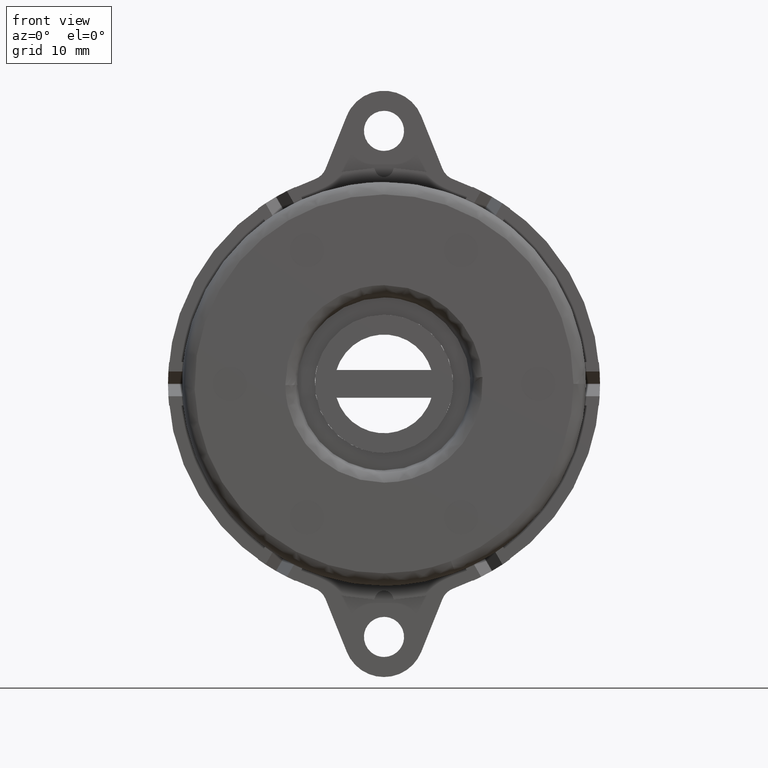
[diagram: clean part render]
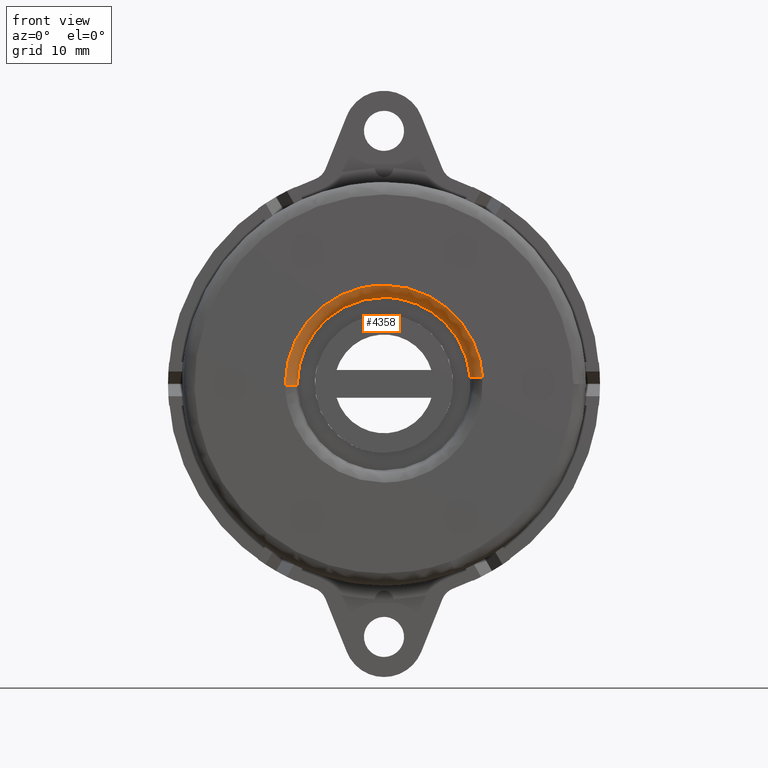
[diagram: same view with one face highlighted and labeled with its STEP entity id]
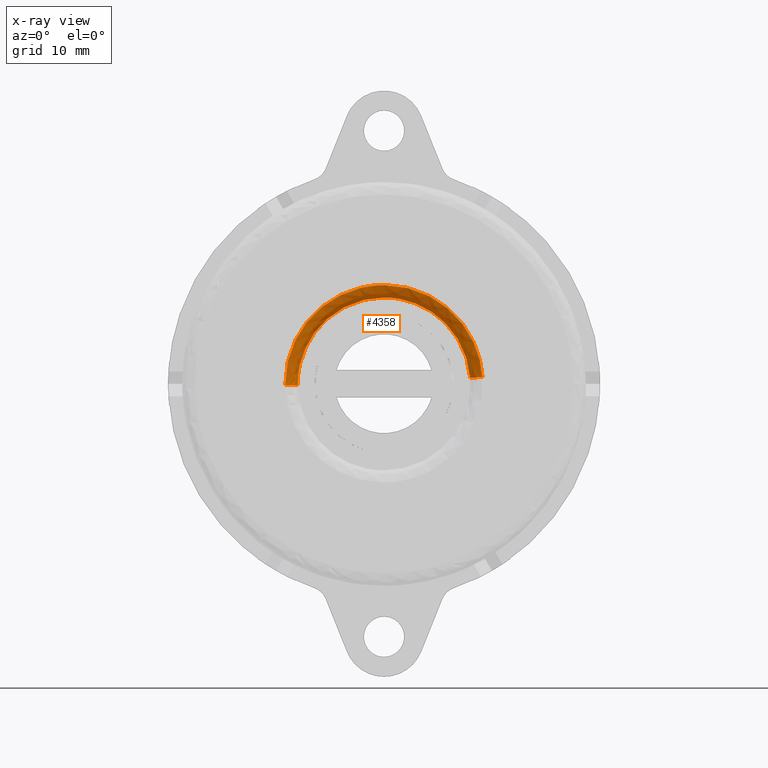
[diagram: x-ray of the same camera — body ghosted, the highlighted face saturated]
A machine part, front view. The second image highlights one B-rep face of the part: STEP entity #4358.
The next image is the same camera in x-ray: the body ghosted, the highlighted face saturated — about 0% of this face is hidden behind the body in this view.
In plain terms, the highlighted face is a freeform B-spline surface patch.
Its self-contained STEP definition (entity closure, byte-faithful):
#4176=CARTESIAN_POINT('',(13.965919433764460,-9.300000000409071,0.976265522078916));
#4177=VERTEX_POINT('',#4176);
#4193=CARTESIAN_POINT('',(-13.998894618852550,-9.300000000415743,-0.175924558436423));
#4194=VERTEX_POINT('',#4193);
#4208=CARTESIAN_POINT('',(-15.998736705224960,-11.300000000000001,-0.201056638404336));
#4209=VERTEX_POINT('',#4208);
#4210=CARTESIAN_POINT('',(-13.998894618852555,-9.300000000415743,-0.175924558436423));
#4211=CARTESIAN_POINT('',(-13.998894619684846,-11.299999995934924,-0.175924558377387));
#4212=CARTESIAN_POINT('',(-15.998736705224960,-11.299999999999999,-0.201056638404336));
#4220=(BOUNDED_CURVE()B_SPLINE_CURVE(2,(#4210,#4211,#4212),.UNSPECIFIED.,.F.,.U.)B_SPLINE_CURVE_WITH_KNOTS((3,3),(-1.725134642855470,-0.274865358802542),.UNSPECIFIED.)CURVE()GEOMETRIC_REPRESENTATION_ITEM()RATIONAL_B_SPLINE_CURVE((0.883342149500942,0.624617224575484,0.883342148909370))REPRESENTATION_ITEM(''));
#4221=EDGE_CURVE('',#4194,#4209,#4220,.T.);
#4238=CARTESIAN_POINT('',(15.961050781235720,-11.300000000000001,1.115732025238826));
#4239=VERTEX_POINT('',#4238);
#4255=CARTESIAN_POINT('',(13.965919433764462,-9.300000000409071,0.976265522078916));
#4256=CARTESIAN_POINT('',(13.965919434582199,-11.299999999583056,0.976265522113243));
#4257=CARTESIAN_POINT('',(15.961050781235722,-11.300000000000001,1.115732025238826));
#4265=(BOUNDED_CURVE()B_SPLINE_CURVE(2,(#4255,#4256,#4257),.UNSPECIFIED.,.F.,.U.)B_SPLINE_CURVE_WITH_KNOTS((3,3),(-1.725134642862314,-0.274865356931973),.UNSPECIFIED.)CURVE()GEOMETRIC_REPRESENTATION_ITEM()RATIONAL_B_SPLINE_CURVE((0.863472075226394,0.610566959971696,0.863472075298140))REPRESENTATION_ITEM(''));
#4266=EDGE_CURVE('',#4177,#4239,#4265,.T.);
#4271=CARTESIAN_POINT('',(-14.003735489938773,-9.160926006789065,-0.175985393749373));
#4272=CARTESIAN_POINT('',(-14.179720883688137,-9.160926006789067,13.827750096189394));
#4273=CARTESIAN_POINT('',(-0.175985393749373,-9.160926006789065,14.003735489938773));
#4274=CARTESIAN_POINT('',(13.048490387634891,-9.160926006789065,14.169927901898280));
#4275=CARTESIAN_POINT('',(13.970748901906783,-9.160926006789069,0.976603118392617));
#4276=CARTESIAN_POINT('',(-13.843832818626264,-11.455074591086436,-0.173975891742374));
#4277=CARTESIAN_POINT('',(-14.017808710368637,-11.455074591086438,13.669856926883892));
#4278=CARTESIAN_POINT('',(-0.173975891742374,-11.455074591086436,13.843832818626263));
#4279=CARTESIAN_POINT('',(12.899495251938603,-11.455074591086440,14.008127550452981));
#4280=CARTESIAN_POINT('',(13.811222890346782,-11.455074591086440,0.965451704717651));
#4281=CARTESIAN_POINT('',(-16.137800226019138,-11.295158711378614,-0.202804253841067));
#4282=CARTESIAN_POINT('',(-16.340604479860215,-11.295158711378608,15.934995972178081));
#4283=CARTESIAN_POINT('',(-0.202804253841067,-11.295158711378614,16.137800226019138));
#4284=CARTESIAN_POINT('',(15.036982902031637,-11.295158711378606,16.329319120760463));
#4285=CARTESIAN_POINT('',(16.099786728250592,-11.295158711378614,1.125430142268153));
#4293=(BOUNDED_SURFACE()B_SPLINE_SURFACE(2,2,((#4271,#4276,#4281),(#4272,#4277,#4282),(#4273,#4278,#4283),(#4274,#4279,#4284),(#4275,#4280,#4285)),.UNSPECIFIED.,.F.,.F.,.U.)B_SPLINE_SURFACE_WITH_KNOTS((3,2,3),(3,3),(0.0,26.740094167363932,52.410584568033293),(0.0,3.644747891325072),.UNSPECIFIED.)GEOMETRIC_REPRESENTATION_ITEM()RATIONAL_B_SPLINE_SURFACE(((0.910479748308557,0.597479572841842,0.910479853569056),(0.643806404162002,0.422481857576908,0.643806478592415),(0.910479748308557,0.597479572841842,0.910479853569056),(0.654473337927864,0.429481766187506,0.654473413591480),(0.889999235478101,0.584039748309495,0.889999338370850)))REPRESENTATION_ITEM('')SURFACE());
#4294=CARTESIAN_POINT('',(0.0,-9.299999999999999,14.0));
#4295=VERTEX_POINT('',#4294);
#4296=CARTESIAN_POINT('',(13.965919433764466,-9.300000000409071,0.976265522078916));
#4297=CARTESIAN_POINT('',(13.055515861690077,-9.299999999999999,14.000000000000004));
#4298=CARTESIAN_POINT('',(0.0,-9.299999999999999,14.0));
#4306=(BOUNDED_CURVE()B_SPLINE_CURVE(2,(#4296,#4297,#4298),.UNSPECIFIED.,.F.,.U.)B_SPLINE_CURVE_WITH_KNOTS((3,3),(0.262166313465425,0.500000000000000),.UNSPECIFIED.)CURVE()GEOMETRIC_REPRESENTATION_ITEM()RATIONAL_B_SPLINE_CURVE((0.972879876385883,0.721360504034475,1.0))REPRESENTATION_ITEM(''));
#4307=EDGE_CURVE('',#4177,#4295,#4306,.T.);
#4308=ORIENTED_EDGE('',*,*,#4307,.F.);
#4309=ORIENTED_EDGE('',*,*,#4266,.T.);
#4310=CARTESIAN_POINT('',(0.0,-11.300000000000001,16.0));
#4311=VERTEX_POINT('',#4310);
#4312=CARTESIAN_POINT('',(0.0,-11.300000000000001,16.0));
#4313=CARTESIAN_POINT('',(14.920589556179154,-11.299999999999999,16.000000000000004));
#4314=CARTESIAN_POINT('',(15.961050781235716,-11.299999999999999,1.115732025238826));
#4322=(BOUNDED_CURVE()B_SPLINE_CURVE(2,(#4312,#4313,#4314),.UNSPECIFIED.,.F.,.U.)B_SPLINE_CURVE_WITH_KNOTS((3,3),(0.0,0.237833686534137),.UNSPECIFIED.)CURVE()GEOMETRIC_REPRESENTATION_ITEM()RATIONAL_B_SPLINE_CURVE((1.0,0.721360504034988,0.972879876384957))REPRESENTATION_ITEM(''));
#4323=EDGE_CURVE('',#4311,#4239,#4322,.T.);
#4324=ORIENTED_EDGE('',*,*,#4323,.F.);
#4325=CARTESIAN_POINT('',(-15.998736705224955,-11.299999999999995,-0.201056638404336));
#4326=CARTESIAN_POINT('',(-16.000000000000004,-11.299999999999995,-0.100532288166506));
#4327=CARTESIAN_POINT('',(-16.0,-11.300000000000001,-9.985231E-016));
#4328=CARTESIAN_POINT('',(-15.999999999999998,-11.299999999999999,15.999999999999998));
#4329=CARTESIAN_POINT('',(0.0,-11.300000000000001,16.0));
#4337=(BOUNDED_CURVE()B_SPLINE_CURVE(2,(#4325,#4326,#4327,#4328,#4329),.UNSPECIFIED.,.F.,.U.)B_SPLINE_CURVE_WITH_KNOTS((3,2,3),(0.747784295915215,0.750000000000000,1.0),.UNSPECIFIED.)CURVE()GEOMETRIC_REPRESENTATION_ITEM()RATIONAL_B_SPLINE_CURVE((0.994854295629023,0.997404141194677,1.0,0.707106781186548,1.0))REPRESENTATION_ITEM(''));
#4338=EDGE_CURVE('',#4209,#4311,#4337,.T.);
#4339=ORIENTED_EDGE('',*,*,#4338,.F.);
#4340=ORIENTED_EDGE('',*,*,#4221,.F.);
#4341=CARTESIAN_POINT('',(0.0,-9.299999999999999,14.0));
#4342=CARTESIAN_POINT('',(-13.999999999999998,-9.300000000000001,13.999999999999998));
#4343=CARTESIAN_POINT('',(-14.0,-9.299999999999999,-9.985231E-016));
#4344=CARTESIAN_POINT('',(-14.0,-9.299999999999999,-0.087965751955996));
#4345=CARTESIAN_POINT('',(-13.998894618852550,-9.300000000415743,-0.175924558436423));
#4353=(BOUNDED_CURVE()B_SPLINE_CURVE(2,(#4341,#4342,#4343,#4344,#4345),.UNSPECIFIED.,.F.,.U.)B_SPLINE_CURVE_WITH_KNOTS((3,2,3),(0.500000000000000,0.750000000000000,0.752215704080019),.UNSPECIFIED.)CURVE()GEOMETRIC_REPRESENTATION_ITEM()RATIONAL_B_SPLINE_CURVE((1.0,0.707106781186547,1.0,0.997404141200261,0.994854295639992))REPRESENTATION_ITEM(''));
#4354=EDGE_CURVE('',#4295,#4194,#4353,.T.);
#4355=ORIENTED_EDGE('',*,*,#4354,.F.);
#4356=EDGE_LOOP('',(#4308,#4309,#4324,#4339,#4340,#4355));
#4357=FACE_OUTER_BOUND('',#4356,.T.);
#4358=ADVANCED_FACE('',(#4357),#4293,.T.);